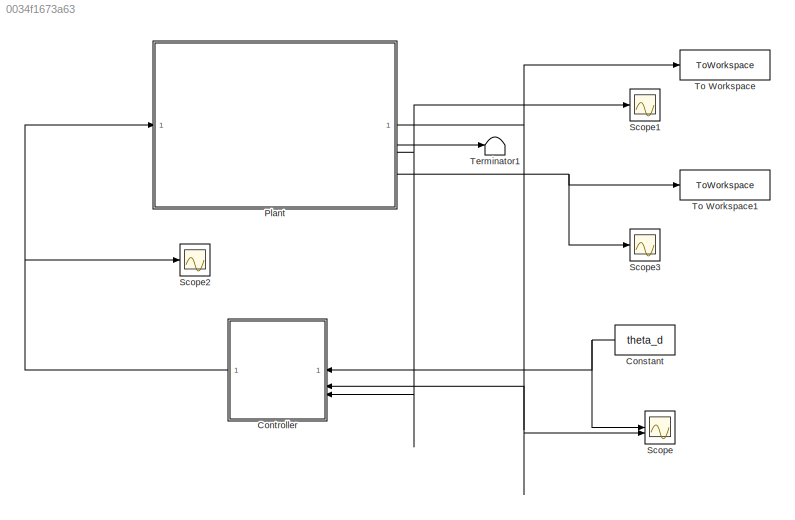
MODEL slx_0034f1673a63
KIND model
CONFIG AbsTol = auto
CONFIG EnableMultiTasking = off
CONFIG FixedStep = auto
CONFIG MaxStep = auto
CONFIG MinStep = auto
CONFIG RelTol = 1e-3
CONFIG SampleTimeConstraint = Unconstrained
CONFIG SolverName = VariableStepAuto
CONFIG StartTime = 0.0
CONFIG StopTime = 2
BLOCK [Constant] Constant
  Value = theta_d
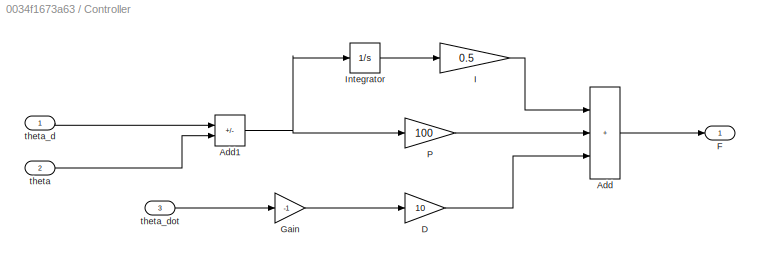
BLOCK [SubSystem] Controller
BLOCK [Sum] Controller/Add
  IconShape = rectangular
  Inputs = +++
BLOCK [Sum] Controller/Add1
  IconShape = rectangular
  Inputs = +-
BLOCK [Gain] Controller/D
  Gain = 10
BLOCK [Outport] Controller/F
BLOCK [Gain] Controller/Gain
  Gain = -1
BLOCK [Gain] Controller/I
  Gain = 0.5
BLOCK [Integrator] Controller/Integrator
BLOCK [Gain] Controller/P
  Gain = 100
BLOCK [Inport] Controller/theta
  Port = 2
BLOCK [Inport] Controller/theta_d
BLOCK [Inport] Controller/theta_dot
  Port = 3
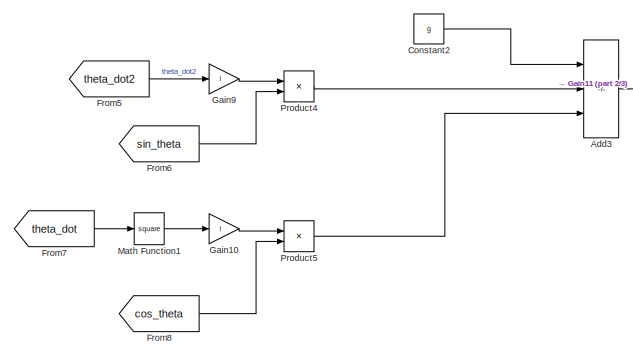
[diagram: Plant - part 1/3, top left region]
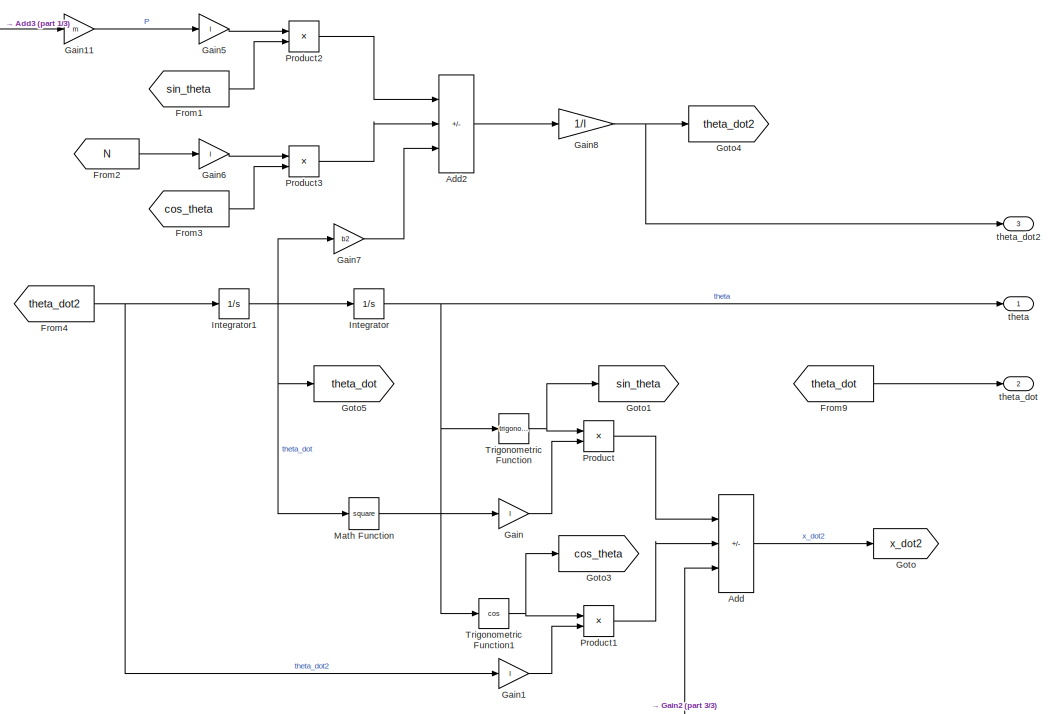
[diagram: Plant - part 2/3, middle right region]
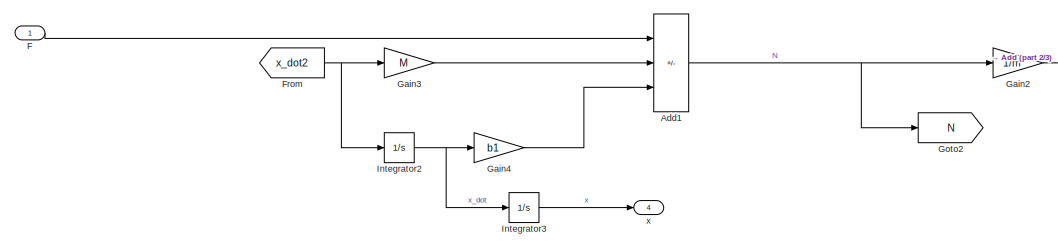
[diagram: Plant - part 3/3, bottom center region]
BLOCK [SubSystem] Plant
BLOCK [Sum] Plant/Add
  IconShape = rectangular
  Inputs = -++
BLOCK [Sum] Plant/Add1
  IconShape = rectangular
  Inputs = +--
BLOCK [Sum] Plant/Add2
  IconShape = rectangular
  Inputs = ++-
BLOCK [Sum] Plant/Add3
  IconShape = rectangular
  Inputs = +--
BLOCK [Constant] Plant/Constant2
  Value = g
BLOCK [Inport] Plant/F
BLOCK [From] Plant/From
  GotoTag = x_dot2
BLOCK [From] Plant/From1
  GotoTag = sin_theta
BLOCK [From] Plant/From2
  GotoTag = N
BLOCK [From] Plant/From3
  GotoTag = cos_theta
BLOCK [From] Plant/From4
  GotoTag = theta_dot2
BLOCK [From] Plant/From5
  GotoTag = theta_dot2
BLOCK [From] Plant/From6
  GotoTag = sin_theta
BLOCK [From] Plant/From7
  GotoTag = theta_dot
BLOCK [From] Plant/From8
  GotoTag = cos_theta
BLOCK [From] Plant/From9
  GotoTag = theta_dot
BLOCK [Gain] Plant/Gain
  Gain = l
BLOCK [Gain] Plant/Gain1
  Gain = l
BLOCK [Gain] Plant/Gain10
  Gain = l
BLOCK [Gain] Plant/Gain11
  Gain = m
BLOCK [Gain] Plant/Gain2
  Gain = 1/m
BLOCK [Gain] Plant/Gain3
  Gain = M
BLOCK [Gain] Plant/Gain4
  Gain = b1
BLOCK [Gain] Plant/Gain5
  Gain = l
BLOCK [Gain] Plant/Gain6
  Gain = l
BLOCK [Gain] Plant/Gain7
  Gain = b2
BLOCK [Gain] Plant/Gain8
  Gain = 1/I
BLOCK [Gain] Plant/Gain9
  Gain = l
BLOCK [Goto] Plant/Goto
  GotoTag = x_dot2
BLOCK [Goto] Plant/Goto1
  GotoTag = sin_theta
BLOCK [Goto] Plant/Goto2
  GotoTag = N
BLOCK [Goto] Plant/Goto3
  GotoTag = cos_theta
BLOCK [Goto] Plant/Goto4
  GotoTag = theta_dot2
BLOCK [Goto] Plant/Goto5
  GotoTag = theta_dot
BLOCK [Integrator] Plant/Integrator
  InitialCondition = theta0
BLOCK [Integrator] Plant/Integrator1
BLOCK [Integrator] Plant/Integrator2
BLOCK [Integrator] Plant/Integrator3
BLOCK [Math] Plant/Math Function
  Operator = square
BLOCK [Math] Plant/Math Function1
  Operator = square
BLOCK [Product] Plant/Product
BLOCK [Product] Plant/Product1
BLOCK [Product] Plant/Product2
BLOCK [Product] Plant/Product3
BLOCK [Product] Plant/Product4
BLOCK [Product] Plant/Product5
BLOCK [Trigonometry] Plant/Trigonometric Function
BLOCK [Trigonometry] Plant/Trigonometric Function1
  Operator = cos
BLOCK [Outport] Plant/theta
BLOCK [Outport] Plant/theta_dot
  Port = 2
BLOCK [Outport] Plant/theta_dot2
  Port = 3
BLOCK [Outport] Plant/x
  Port = 4
BLOCK [Scope] Scope
  Floating = off
  NumInputPorts = 2
  ScopeSpecificationString = Simulink.scopes.TimeScopeBlockCfg('CurrentConfiguration', extmgr.ConfigurationSet(extmgr.Configuration('Core','General UI',true),extmgr.Configuration('Core','Source UI',true),extmgr.Configuration('Sources','WiredSimulink',true),extmgr.Configuration('Visuals','Time Domain',true,'SerializedDisplays',{struct('MinYLimReal','-0.1056','MaxYLimReal','0.59351','YLabelReal','','MinYLimMag','0.00000','MaxYL...<+1470ch>
BLOCK [Scope] Scope1
  Floating = off
  NumInputPorts = 1
  ScopeSpecificationString = Simulink.scopes.TimeScopeBlockCfg('CurrentConfiguration', extmgr.ConfigurationSet(extmgr.Configuration('Core','General UI',true),extmgr.Configuration('Core','Source UI',true),extmgr.Configuration('Sources','WiredSimulink',true,'DataLoggingVariableName','ScopeData1'),extmgr.Configuration('Visuals','Time Domain',true,'SerializedDisplays',{struct('MinYLimReal','-0.4946','MaxYLimReal','0.09184','YLabe...<+1501ch>
BLOCK [Scope] Scope2
  Floating = off
  NumInputPorts = 1
  ScopeSpecificationString = Simulink.scopes.TimeScopeBlockCfg('CurrentConfiguration', extmgr.ConfigurationSet(extmgr.Configuration('Core','General UI',true),extmgr.Configuration('Core','Source UI',true),extmgr.Configuration('Sources','WiredSimulink',true,'DataLoggingVariableName','ScopeData2'),extmgr.Configuration('Visuals','Time Domain',true,'SerializedDisplays',{struct('MinYLimReal','-59.91204','MaxYLimReal','15.60959','YL...<+1506ch>
BLOCK [Scope] Scope3
  Floating = off
  NumInputPorts = 1
  ScopeSpecificationString = Simulink.scopes.TimeScopeBlockCfg('CurrentConfiguration', extmgr.ConfigurationSet(extmgr.Configuration('Core','General UI',true),extmgr.Configuration('Core','Source UI',true),extmgr.Configuration('Sources','WiredSimulink',true,'DataLoggingVariableName','ScopeData1'),extmgr.Configuration('Visuals','Time Domain',true,'SerializedDisplays',{struct('MinYLimReal','-12.32572','MaxYLimReal','1.36952','YLa...<+1501ch>
BLOCK [Terminator] Terminator1
BLOCK [ToWorkspace] To Workspace
  FixptAsFi = on
  MaxDataPoints = inf
  SampleTime = -1
  SaveFormat = Timeseries
  VariableName = theta
BLOCK [ToWorkspace] To Workspace1
  FixptAsFi = on
  MaxDataPoints = inf
  SampleTime = -1
  SaveFormat = Timeseries
  VariableName = x
NET Constant:1 -> Controller:1, Scope:1
NET Controller/Add1:1 -> Controller/Integrator:1, Controller/P:1
LINE Controller/Add:1 -> Controller/F:1
LINE Controller/D:1 -> Controller/Add:3
LINE Controller/Gain:1 -> Controller/D:1
LINE Controller/I:1 -> Controller/Add:1
LINE Controller/Integrator:1 -> Controller/I:1
LINE Controller/P:1 -> Controller/Add:2
LINE Controller/theta:1 -> Controller/Add1:2
LINE Controller/theta_d:1 -> Controller/Add1:1
LINE Controller/theta_dot:1 -> Controller/Gain:1
NET Controller:1 -> Plant:1, Scope2:1
NET Plant/Add1:1 -> Plant/Gain2:1, Plant/Goto2:1
LINE Plant/Add2:1 -> Plant/Gain8:1
LINE Plant/Add3:1 -> Plant/Gain11:1
LINE Plant/Add:1 -> Plant/Goto:1
LINE Plant/Constant2:1 -> Plant/Add3:1
LINE Plant/F:1 -> Plant/Add1:1
LINE Plant/From1:1 -> Plant/Product2:2
LINE Plant/From2:1 -> Plant/Gain6:1
LINE Plant/From3:1 -> Plant/Product3:2
NET Plant/From4:1 -> Plant/Gain1:1, Plant/Integrator1:1
LINE Plant/From5:1 -> Plant/Gain9:1
LINE Plant/From6:1 -> Plant/Product4:2
LINE Plant/From7:1 -> Plant/Math Function1:1
LINE Plant/From8:1 -> Plant/Product5:2
LINE Plant/From9:1 -> Plant/theta_dot:1
NET Plant/From:1 -> Plant/Gain3:1, Plant/Integrator2:1
LINE Plant/Gain10:1 -> Plant/Product5:1
LINE Plant/Gain11:1 -> Plant/Gain5:1
LINE Plant/Gain1:1 -> Plant/Product1:2
LINE Plant/Gain2:1 -> Plant/Add:3
LINE Plant/Gain3:1 -> Plant/Add1:2
LINE Plant/Gain4:1 -> Plant/Add1:3
LINE Plant/Gain5:1 -> Plant/Product2:1
LINE Plant/Gain6:1 -> Plant/Product3:1
LINE Plant/Gain7:1 -> Plant/Add2:3
NET Plant/Gain8:1 -> Plant/Goto4:1, Plant/theta_dot2:1
LINE Plant/Gain9:1 -> Plant/Product4:1
LINE Plant/Gain:1 -> Plant/Product:2
NET Plant/Integrator1:1 -> Plant/Gain7:1, Plant/Goto5:1, Plant/Integrator:1, Plant/Math Function:1
NET Plant/Integrator2:1 -> Plant/Gain4:1, Plant/Integrator3:1
LINE Plant/Integrator3:1 -> Plant/x:1
NET Plant/Integrator:1 -> Plant/Trigonometric Function1:1, Plant/Trigonometric Function:1, Plant/theta:1
LINE Plant/Math Function1:1 -> Plant/Gain10:1
LINE Plant/Math Function:1 -> Plant/Gain:1
LINE Plant/Product1:1 -> Plant/Add:2
LINE Plant/Product2:1 -> Plant/Add2:1
LINE Plant/Product3:1 -> Plant/Add2:2
LINE Plant/Product4:1 -> Plant/Add3:2
LINE Plant/Product5:1 -> Plant/Add3:3
LINE Plant/Product:1 -> Plant/Add:1
NET Plant/Trigonometric Function1:1 -> Plant/Goto3:1, Plant/Product1:1
NET Plant/Trigonometric Function:1 -> Plant/Goto1:1, Plant/Product:1
NET Plant:1 -> Controller:2, Scope:2, To Workspace:1
NET Plant:2 -> Controller:3, Scope1:1
LINE Plant:3 -> Terminator1:1
NET Plant:4 -> Scope3:1, To Workspace1:1
note: NET lines group one-source signal fan-out (src -> all destinations, sorted); 1:1 wires keep LINE
